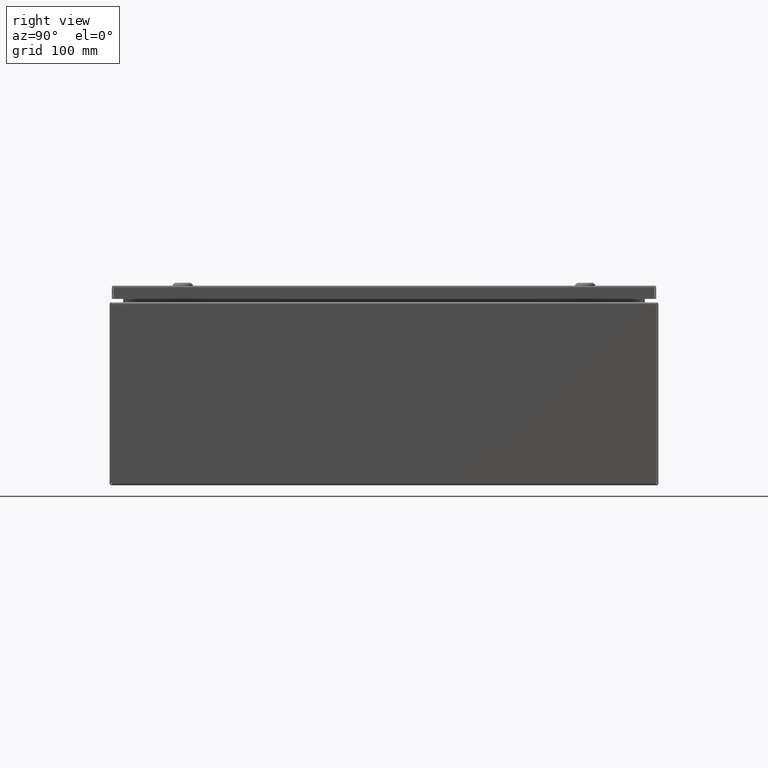
[diagram: clean part render]
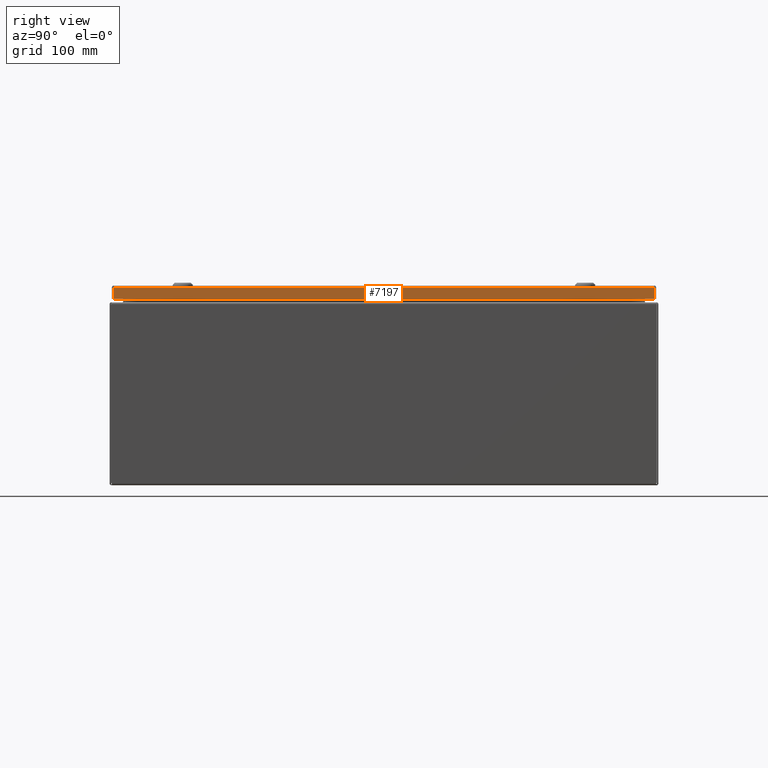
[diagram: same view with one face highlighted and labeled with its STEP entity id]
A machine part, right view. The second image highlights one B-rep face of the part: STEP entity #7197.
In plain terms, the highlighted planar face has unit normal (-1, -0, 0).
Its self-contained STEP definition (entity closure, byte-faithful):
#6949=CARTESIAN_POINT('',(-2.972699E-015,29.664951456543957,0.105250000000007));
#6950=VERTEX_POINT('',#6949);
#6951=CARTESIAN_POINT('',(6.039825E-015,0.085048543456044,0.105250000000001));
#6952=VERTEX_POINT('',#6951);
#6953=CARTESIAN_POINT('',(-2.976375E-015,29.664951456543957,0.105250000000000));
#6954=DIRECTION('',(0.0,-1.0,0.0));
#6955=VECTOR('',#6954,29.579902913087913);
#6956=LINE('',#6953,#6955);
#6957=EDGE_CURVE('',#6950,#6952,#6956,.T.);
#7035=CARTESIAN_POINT('',(5.979717E-015,0.085048543456044,0.730000000000001));
#7036=VERTEX_POINT('',#7035);
#7037=CARTESIAN_POINT('',(5.979717E-015,0.085048543456044,0.730000000000001));
#7038=DIRECTION('',(0.0,0.0,-1.0));
#7039=VECTOR('',#7038,0.624750000000000);
#7040=LINE('',#7037,#7039);
#7041=EDGE_CURVE('',#7036,#6952,#7040,.T.);
#7150=CARTESIAN_POINT('',(-3.043734E-015,29.664951456543957,0.730000000000007));
#7151=VERTEX_POINT('',#7150);
#7152=CARTESIAN_POINT('',(-2.983626E-015,29.664951456543957,0.105250000000007));
#7153=DIRECTION('',(0.0,0.0,1.0));
#7154=VECTOR('',#7153,0.624750000000000);
#7155=LINE('',#7152,#7154);
#7156=EDGE_CURVE('',#6950,#7151,#7155,.T.);
#7174=CARTESIAN_POINT('',(-3.021880E-015,29.664951456543957,0.730000000000007));
#7175=DIRECTION('',(0.0,-1.0,0.0));
#7176=VECTOR('',#7175,29.579902913087913);
#7177=LINE('',#7174,#7176);
#7178=EDGE_CURVE('',#7151,#7036,#7177,.T.);
#7186=CARTESIAN_POINT('',(1.506138E-015,14.874999999999998,0.374696241644326));
#7187=DIRECTION('',(1.0,0.0,0.0));
#7188=DIRECTION('',(0.0,0.0,-1.0));
#7189=AXIS2_PLACEMENT_3D('',#7186,#7187,#7188);
#7190=PLANE('',#7189);
#7191=ORIENTED_EDGE('',*,*,#6957,.T.);
#7192=ORIENTED_EDGE('',*,*,#7041,.F.);
#7193=ORIENTED_EDGE('',*,*,#7178,.F.);
#7194=ORIENTED_EDGE('',*,*,#7156,.F.);
#7195=EDGE_LOOP('',(#7191,#7192,#7193,#7194));
#7196=FACE_OUTER_BOUND('',#7195,.T.);
#7197=ADVANCED_FACE('',(#7196),#7190,.F.);